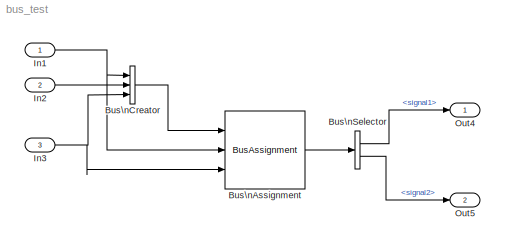
MODEL bus_test
KIND model
BLOCK [BusAssignment] Bus\nAssignment
  AssignedSignals = signal1,signal3
  Ports = [3, 1]
  SID = 118
BLOCK [BusCreator] Bus\nCreator
  DisplayOption = bar
  InheritFromInputs = on
  Inputs = 3
  Ports = [3, 1]
  SID = 115
BLOCK [BusSelector] Bus\nSelector
  OutputAsBus = off
  OutputSignals = signal1,signal2
  Ports = [1, 2]
  SID = 116
BLOCK [Inport] In1
  IconDisplay = Port number
  PortDimensions = 1
  SID = 1
BLOCK [Inport] In2
  IconDisplay = Port number
  OutDataTypeStr = int8
  Port = 2
  PortDimensions = 2
  SID = 77
BLOCK [Inport] In3
  IconDisplay = Port number
  OutDataTypeStr = boolean
  Port = 3
  PortDimensions = 3
  SID = 80
BLOCK [Outport] Out4
  IconDisplay = Port number
  SID = 97
BLOCK [Outport] Out5
  IconDisplay = Port number
  Port = 2
  SID = 98
LINE Bus\nAssignment:1 -> Bus\nSelector:1
LINE Bus\nCreator:1 -> Bus\nAssignment:1
LINE Bus\nSelector:1 -> Out4:1
LINE Bus\nSelector:2 -> Out5:1
NET In1:1 -> Bus\nAssignment:2, Bus\nCreator:1
LINE In2:1 -> Bus\nCreator:2
NET In3:1 -> Bus\nAssignment:3, Bus\nCreator:3
note: NET lines group one-source signal fan-out (src -> all destinations, sorted); 1:1 wires keep LINE
